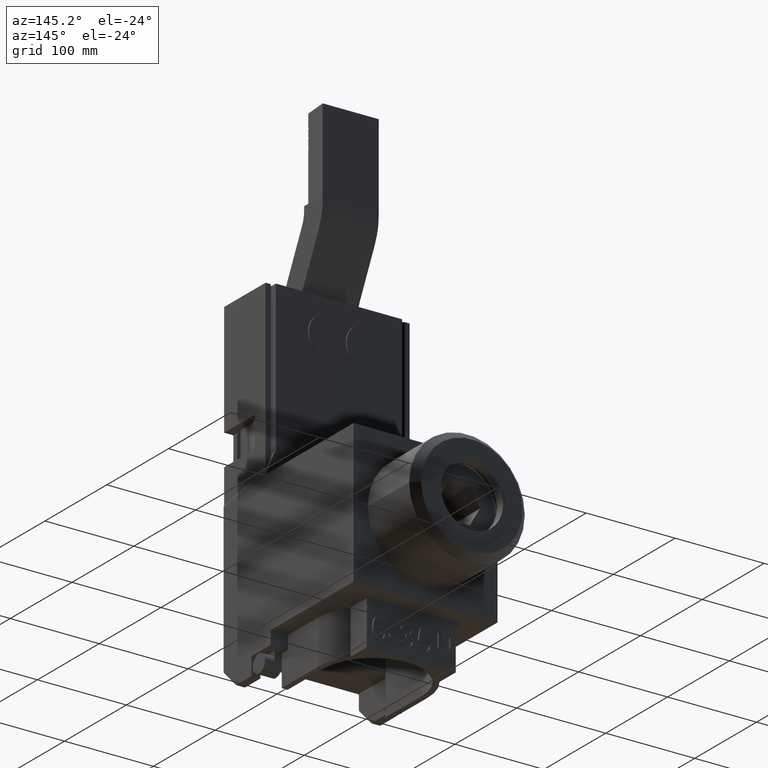
[diagram: clean part render]
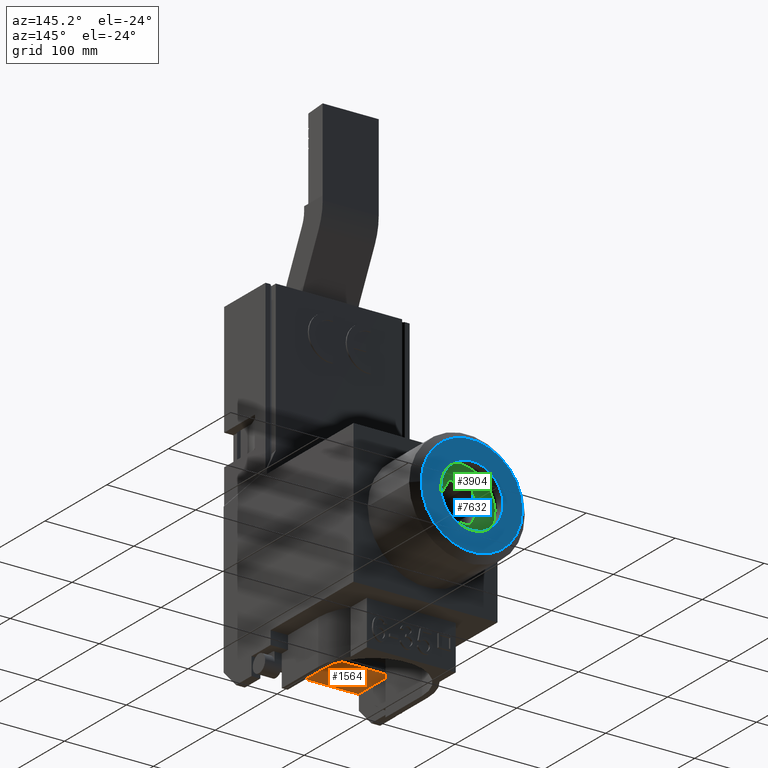
[diagram: same view with three faces highlighted in distinct colors, each labeled with its STEP entity id]
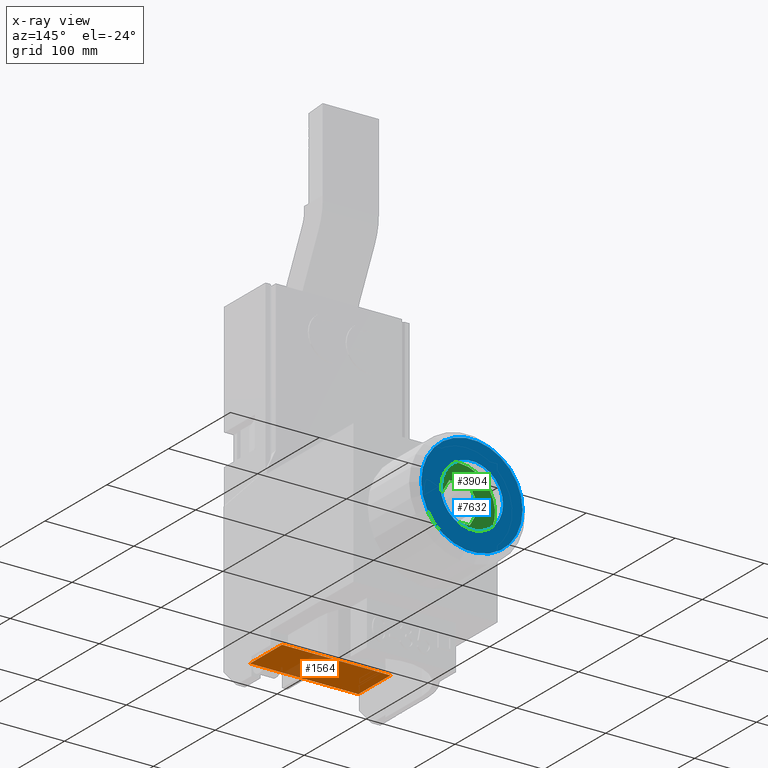
[diagram: x-ray of the same camera — body ghosted, the three highlighted faces saturated]
A machine part, auxiliary view with three faces highlighted in distinct colors.
The next image is the same camera in x-ray (body ghosted, the three faces saturated) — at least one of them is partly hidden behind the body in this view.
Their STEP definitions:

[orange] entity #1564 — the highlighted planar face has unit normal (0, 0, -1).
#1525=CARTESIAN_POINT('',(-240.59263777450522,28.565370274609787,44.399999999999665));
#1526=DIRECTION('',(0.0,0.0,-1.0));
#1527=DIRECTION('',(-1.0,0.0,0.0));
#1528=AXIS2_PLACEMENT_3D('',#1525,#1526,#1527);
#1529=PLANE('',#1528);
#1530=CARTESIAN_POINT('',(-110.09263777450542,41.459547226576525,44.399999999999636));
#1531=VERTEX_POINT('',#1530);
#1532=CARTESIAN_POINT('',(-110.09263777450541,93.565370274609705,44.399999999999679));
#1533=VERTEX_POINT('',#1532);
#1534=CARTESIAN_POINT('',(-110.09263777450541,41.459547226576525,44.399999999999622));
#1535=DIRECTION('',(0.0,1.0,0.0));
#1536=VECTOR('',#1535,52.10582304803318);
#1537=LINE('',#1534,#1536);
#1538=EDGE_CURVE('',#1531,#1533,#1537,.T.);
#1539=ORIENTED_EDGE('',*,*,#1538,.F.);
#1540=CARTESIAN_POINT('',(-232.09263777450545,41.459547226576689,44.399999999999679));
#1541=VERTEX_POINT('',#1540);
#1542=CARTESIAN_POINT('',(-110.09263777450542,41.459547226576525,44.399999999999636));
#1543=DIRECTION('',(-1.0,0.0,0.0));
#1544=VECTOR('',#1543,122.00000000000003);
#1545=LINE('',#1542,#1544);
#1546=EDGE_CURVE('',#1531,#1541,#1545,.T.);
#1547=ORIENTED_EDGE('',*,*,#1546,.T.);
#1548=CARTESIAN_POINT('',(-232.09263777450533,93.565370274609791,44.399999999999729));
#1549=VERTEX_POINT('',#1548);
#1550=CARTESIAN_POINT('',(-232.09263777450545,93.565370274609791,44.399999999999736));
#1551=DIRECTION('',(0.0,-1.0,0.0));
#1552=VECTOR('',#1551,52.105823048033102);
#1553=LINE('',#1550,#1552);
#1554=EDGE_CURVE('',#1549,#1541,#1553,.T.);
#1555=ORIENTED_EDGE('',*,*,#1554,.F.);
#1556=CARTESIAN_POINT('',(-232.09263777450533,93.565370274609791,44.399999999999729));
#1557=DIRECTION('',(1.0,0.0,0.0));
#1558=VECTOR('',#1557,121.99999999999996);
#1559=LINE('',#1556,#1558);
#1560=EDGE_CURVE('',#1549,#1533,#1559,.T.);
#1561=ORIENTED_EDGE('',*,*,#1560,.T.);
#1562=EDGE_LOOP('',(#1539,#1547,#1555,#1561));
#1563=FACE_OUTER_BOUND('',#1562,.T.);
#1564=ADVANCED_FACE('',(#1563),#1529,.T.);

[blue] entity #7632 — the highlighted planar face has unit normal (0, -1, 0).
#7578=CARTESIAN_POINT('',(-113.59263777450516,313.56537027460956,130.00000000000006));
#7579=VERTEX_POINT('',#7578);
#7580=CARTESIAN_POINT('',(-170.59263777450514,313.56537027460956,130.00000000000011));
#7581=DIRECTION('',(0.0,-1.0,0.0));
#7582=DIRECTION('',(-1.0,0.0,0.0));
#7583=AXIS2_PLACEMENT_3D('',#7580,#7581,#7582);
#7584=CIRCLE('',#7583,56.999999999999972);
#7585=EDGE_CURVE('',#7579,#7579,#7584,.T.);
#7613=CARTESIAN_POINT('',(-170.59263777450514,313.56537027460956,130.00000000000011));
#7614=DIRECTION('',(0.0,-1.0,0.0));
#7615=DIRECTION('',(0.0,0.0,-1.0));
#7616=AXIS2_PLACEMENT_3D('',#7613,#7614,#7615);
#7617=PLANE('',#7616);
#7618=ORIENTED_EDGE('',*,*,#7585,.F.);
#7619=EDGE_LOOP('',(#7618));
#7620=FACE_OUTER_BOUND('',#7619,.T.);
#7621=CARTESIAN_POINT('',(-135.59263777450514,313.56537027460956,130.00000000000011));
#7622=VERTEX_POINT('',#7621);
#7623=CARTESIAN_POINT('',(-170.59263777450514,313.56537027460956,130.00000000000011));
#7624=DIRECTION('',(0.0,-1.0,0.0));
#7625=DIRECTION('',(-1.0,0.0,0.0));
#7626=AXIS2_PLACEMENT_3D('',#7623,#7624,#7625);
#7627=CIRCLE('',#7626,35.000000000000007);
#7628=EDGE_CURVE('',#7622,#7622,#7627,.T.);
#7629=ORIENTED_EDGE('',*,*,#7628,.T.);
#7630=EDGE_LOOP('',(#7629));
#7631=FACE_BOUND('',#7630,.T.);
#7632=ADVANCED_FACE('',(#7620,#7631),#7617,.F.);

[green] entity #3904 — the highlighted planar face has unit normal (0, -1, 0).
#3648=CARTESIAN_POINT('',(-182.09263777450678,293.56537027460968,110.18141571295679));
#3649=VERTEX_POINT('',#3648);
#3656=CARTESIAN_POINT('',(-193.59263777450673,293.56537027460968,130.09999999999883));
#3657=VERTEX_POINT('',#3656);
#3658=CARTESIAN_POINT('',(-193.59263777450673,293.56537027460968,130.09999999999883));
#3659=DIRECTION('',(0.500000000000002,0.0,-0.866025403784438));
#3660=VECTOR('',#3659,22.999999999999918);
#3661=LINE('',#3658,#3660);
#3662=EDGE_CURVE('',#3657,#3649,#3661,.T.);
#3693=CARTESIAN_POINT('',(-159.0926377745067,293.56537027460968,110.18141571295681));
#3694=VERTEX_POINT('',#3693);
#3701=CARTESIAN_POINT('',(-182.09263777450678,293.56537027460968,110.18141571295681));
#3702=DIRECTION('',(1.0,0.0,0.0));
#3703=VECTOR('',#3702,23.000000000000114);
#3704=LINE('',#3701,#3703);
#3705=EDGE_CURVE('',#3649,#3694,#3704,.T.);
#3731=CARTESIAN_POINT('',(-147.59263777450667,293.56537027460968,130.09999999999886));
#3732=VERTEX_POINT('',#3731);
#3739=CARTESIAN_POINT('',(-159.09263777450667,293.56537027460968,110.18141571295679));
#3740=DIRECTION('',(0.499999999999999,0.0,0.866025403784439));
#3741=VECTOR('',#3740,22.999999999999989);
#3742=LINE('',#3739,#3741);
#3743=EDGE_CURVE('',#3694,#3732,#3742,.T.);
#3769=CARTESIAN_POINT('',(-159.0926377745067,293.56537027460968,150.01858428704094));
#3770=VERTEX_POINT('',#3769);
#3777=CARTESIAN_POINT('',(-147.59263777450667,293.56537027460968,130.09999999999886));
#3778=DIRECTION('',(-0.5,0.0,0.866025403784438));
#3779=VECTOR('',#3778,22.999999999999993);
#3780=LINE('',#3777,#3779);
#3781=EDGE_CURVE('',#3732,#3770,#3780,.T.);
#3808=CARTESIAN_POINT('',(-182.09263777450678,293.56537027460968,150.01858428704094));
#3809=VERTEX_POINT('',#3808);
#3810=CARTESIAN_POINT('',(-182.09263777450678,293.56537027460968,150.01858428704094));
#3811=DIRECTION('',(-0.5,0.0,-0.866025403784439));
#3812=VECTOR('',#3811,22.999999999999954);
#3813=LINE('',#3810,#3812);
#3814=EDGE_CURVE('',#3809,#3657,#3813,.T.);
#3844=CARTESIAN_POINT('',(-159.0926377745067,293.56537027460968,150.01858428704094));
#3845=DIRECTION('',(-1.0,0.0,0.0));
#3846=VECTOR('',#3845,23.000000000000114);
#3847=LINE('',#3844,#3846);
#3848=EDGE_CURVE('',#3770,#3809,#3847,.T.);
#3873=CARTESIAN_POINT('',(-130.5926379704344,293.56537027460968,130.09604093224559));
#3874=VERTEX_POINT('',#3873);
#3875=CARTESIAN_POINT('',(-170.59263777450664,293.56537027460968,130.09999999999886));
#3876=DIRECTION('',(0.0,-1.0,0.0));
#3877=DIRECTION('',(-0.999999995101807,0.0,0.000098976693833));
#3878=AXIS2_PLACEMENT_3D('',#3875,#3876,#3877);
#3879=CIRCLE('',#3878,39.999999999999993);
#3880=EDGE_CURVE('',#3874,#3874,#3879,.T.);
#3888=CARTESIAN_POINT('',(-170.59263777450664,293.56537027460968,130.09999999999886));
#3889=DIRECTION('',(0.0,-1.0,0.0));
#3890=DIRECTION('',(0.0,0.0,-1.0));
#3891=AXIS2_PLACEMENT_3D('',#3888,#3889,#3890);
#3892=PLANE('',#3891);
#3893=ORIENTED_EDGE('',*,*,#3880,.F.);
#3894=EDGE_LOOP('',(#3893));
#3895=FACE_OUTER_BOUND('',#3894,.T.);
#3896=ORIENTED_EDGE('',*,*,#3743,.T.);
#3897=ORIENTED_EDGE('',*,*,#3781,.T.);
#3898=ORIENTED_EDGE('',*,*,#3848,.T.);
#3899=ORIENTED_EDGE('',*,*,#3814,.T.);
#3900=ORIENTED_EDGE('',*,*,#3662,.T.);
#3901=ORIENTED_EDGE('',*,*,#3705,.T.);
#3902=EDGE_LOOP('',(#3896,#3897,#3898,#3899,#3900,#3901));
#3903=FACE_BOUND('',#3902,.T.);
#3904=ADVANCED_FACE('',(#3895,#3903),#3892,.F.);